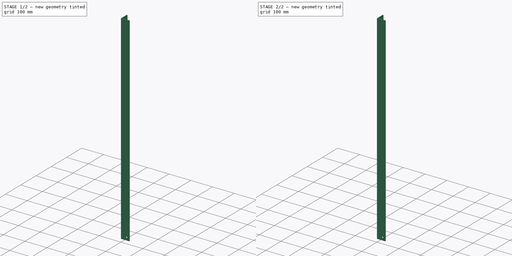
[diagram: build sequence overview — one tinted view per stage of 2, left to right]
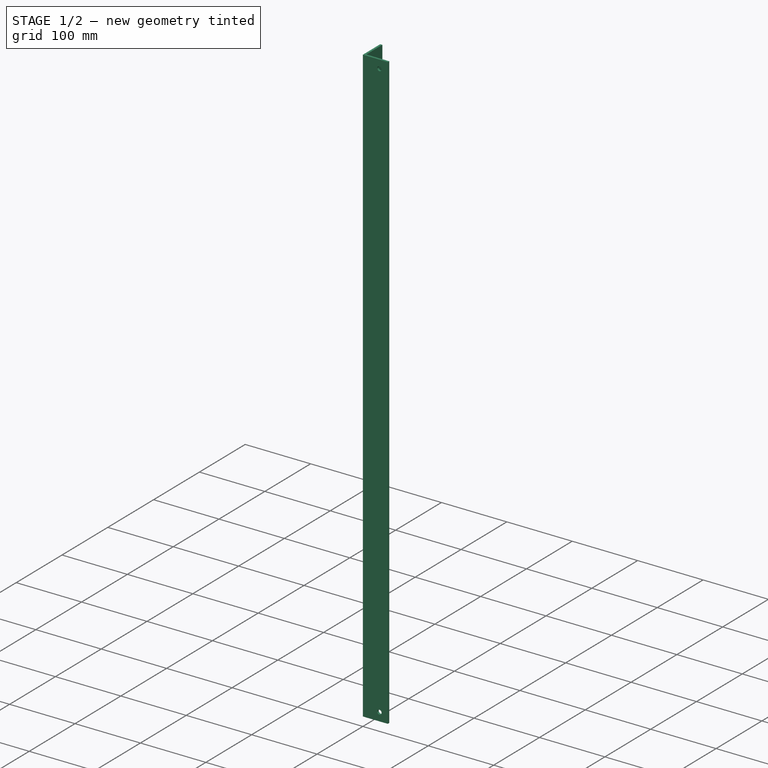
[diagram: stage 1 of 2 — iso view after this stage's code; geometry added in this stage tinted green]
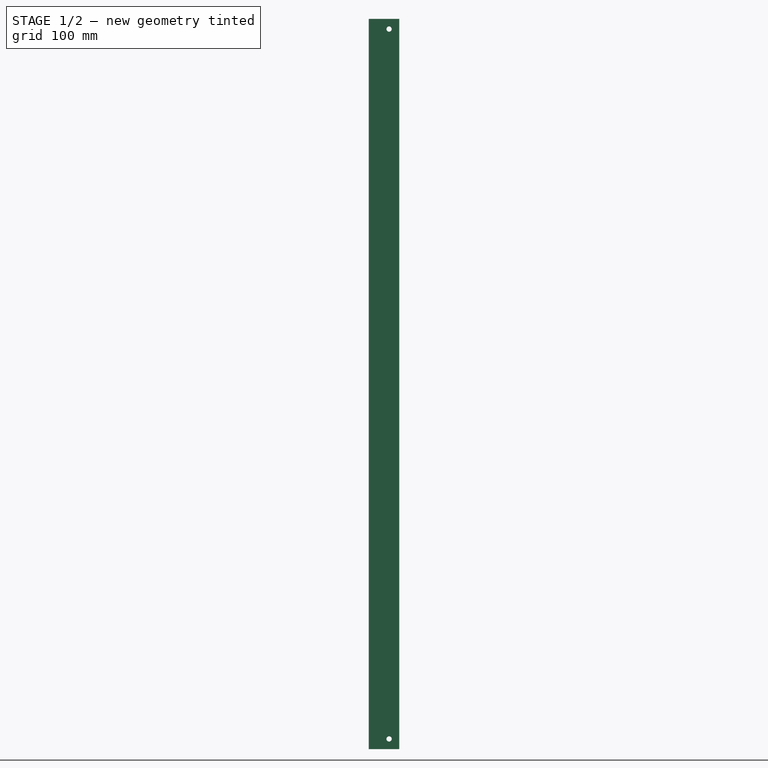
[diagram: stage 1 of 2 — front view after this stage's code; geometry added in this stage tinted green]
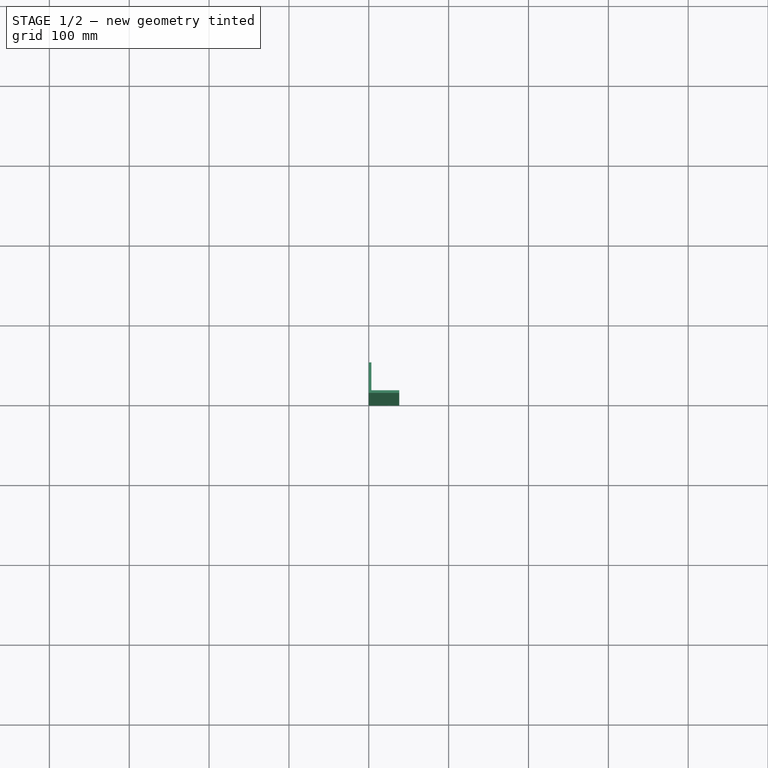
[diagram: stage 1 of 2 — top view after this stage's code; geometry added in this stage tinted green]
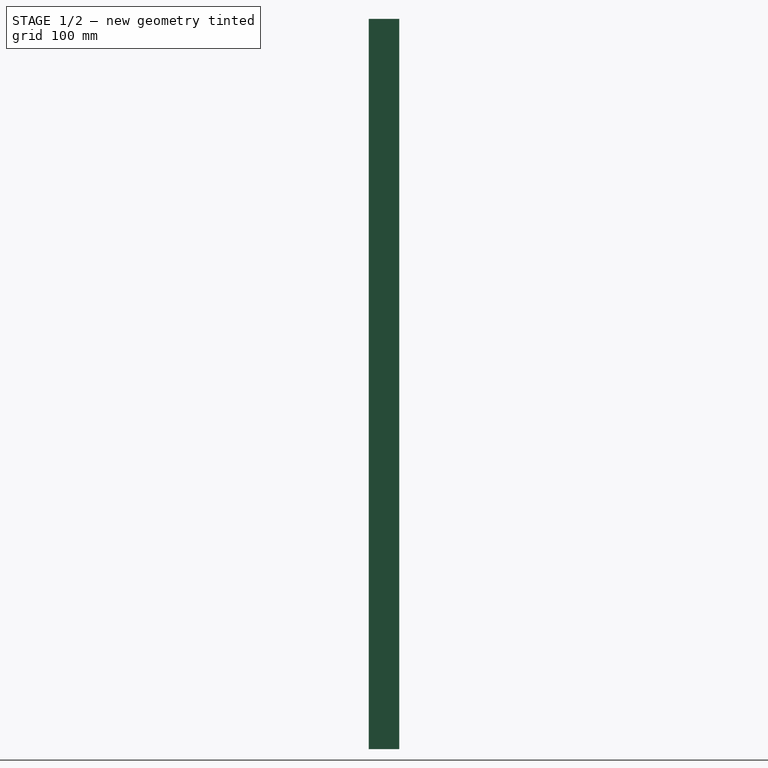
[diagram: stage 1 of 2 — right view after this stage's code; geometry added in this stage tinted green]
FCSTD DOCUMENT  (FreeCAD 0.21R33694 (Git))
Label: Angle_36in_Holes
License: All rights reserved
LicenseURL: http://en.wikipedia.org/wiki/All_rights_reserved
objects: Sketcher::SketchObject×3, PartDesign::Pocket×2, PartDesign::Pad×1, PartDesign::Body×1, App::Part×1
note: 10 computed .brp shape members not serialized (recipe doc carries the construction recipe); baked Part::Feature solids carry a one-line shape summary decoded from their .brp

FEATURE [Sketcher::SketchObject] Sketch
  FullyConstrained = true
  MapMode = 5
  sketch-geometry (6):
    g0: LineSegment StartX=0 StartY=0 StartZ=0 EndX=38.1 EndY=0 EndZ=0
    g1: LineSegment StartX=38.1 StartY=0 StartZ=0 EndX=38.1 EndY=3.175 EndZ=0
    g2: LineSegment StartX=38.1 StartY=3.175 StartZ=0 EndX=3.175 EndY=3.175 EndZ=0
    g3: LineSegment StartX=3.175 StartY=3.175 StartZ=0 EndX=3.175 EndY=38.1 EndZ=0
    g4: LineSegment StartX=3.175 StartY=38.1 StartZ=0 EndX=0 EndY=38.1 EndZ=0
    g5: LineSegment StartX=0 StartY=38.1 StartZ=0 EndX=0 EndY=0 EndZ=0
  constraints (17):
    c: Coincident(g-1,g0)
    c: PointOnObject(g0,g-1)
    c: Coincident(g0,g1)
    c: Vertical(g1)
    c: Coincident(g1,g2)
    c: Horizontal(g2)
    c: Coincident(g2,g3)
    c: Vertical(g3)
    c: Coincident(g3,g4)
    c: PointOnObject(g4,g-2)
    c: Coincident(g4,g5)
    c: Coincident(g5,g0)
    c: Horizontal(g4)
    c: Equal(g1,g4)
    c: Equal(g0,g5)
    c: Distance(g0) = 38.1
    c: DistanceY(g1,g1) = 3.175
FEATURE [PartDesign::Pad] Pad
  Direction = (0,0,1)
  Length = 914.4
  Length2 = 10
  Profile = -> Sketch
  ReferenceAxis = -> Sketch [N_Axis]
  Type = 0
FEATURE [Sketcher::SketchObject] Sketch001
  ExternalGeometry = -> [Pad]
  FullyConstrained = true
  MapMode = 5
  Placement = pos=(0,0,0) rot=(1,0,0;1.5708rad)
  Support = -> [Pad]
  sketch-geometry (6):
    g0: LineSegment StartX=38.1 StartY=914.4 StartZ=0 EndX=25.4 EndY=914.4 EndZ=0
    g1: LineSegment StartX=25.4 StartY=914.4 StartZ=0 EndX=25.4 EndY=901.7 EndZ=0
    g2: Circle CenterX=25.4 CenterY=901.7 CenterZ=0 NormalX=0 NormalY=0 NormalZ=1 AngleXU=0 Radius=3.3
    g3: LineSegment StartX=38.1 StartY=-1e-16 StartZ=0 EndX=25.4 EndY=-1e-16 EndZ=0
    g4: LineSegment StartX=25.4 StartY=-1e-16 StartZ=0 EndX=25.4 EndY=12.7 EndZ=0
    g5: Circle CenterX=25.4 CenterY=12.7 CenterZ=0 NormalX=0 NormalY=0 NormalZ=1 AngleXU=0 Radius=3.3
  constraints (16):
    c: Coincident(g0,g1)
    c: Horizontal(g0)
    c: Vertical(g1)
    c: Coincident(g0,g-3)
    c: Equal(g0,g1)
    c: DistanceX(g0,g0) = 12.7
    c: Coincident(g2,g1)
    c: Diameter(g2) = 6.6
    c: Coincident(g3,g4)
    c: Horizontal(g3)
    c: Vertical(g4)
    c: Coincident(g3,g-4)
    c: Equal(g3,g4)
    c: Equal(g3,g0)
    c: Coincident(g5,g4)
    c: Equal(g5,g2)
FEATURE [PartDesign::Pocket] Pocket
  BaseFeature = -> Pad
  Direction = (0,1,-2e-16)
  Length = 0
  Length2 = 5
  Profile = -> Sketch001
  ReferenceAxis = -> Sketch001 [N_Axis]
  Type = 3
  UpToFace = -> Pad [Face3]
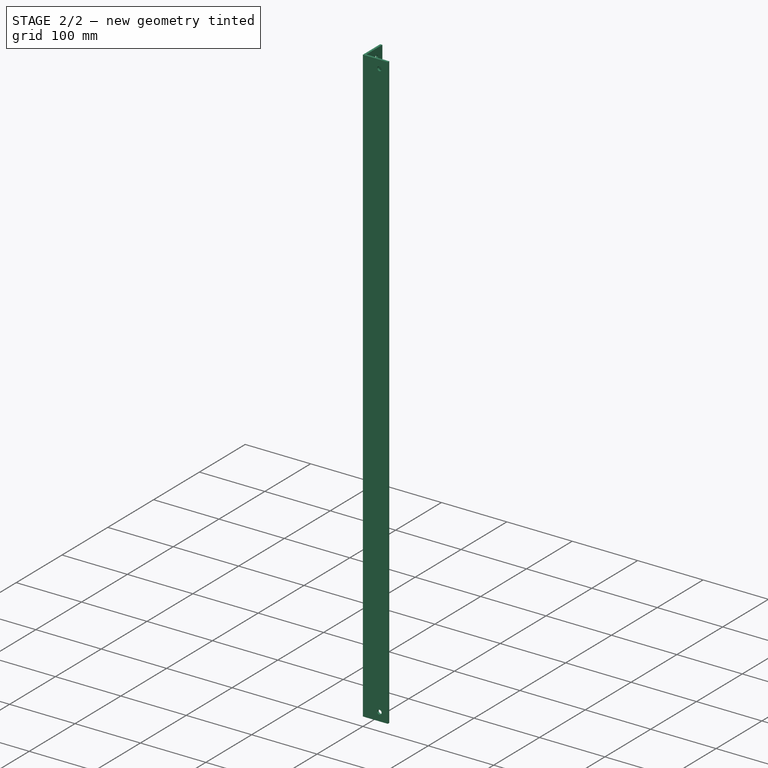
[diagram: stage 2 of 2 — iso view after this stage's code; geometry added in this stage tinted green]
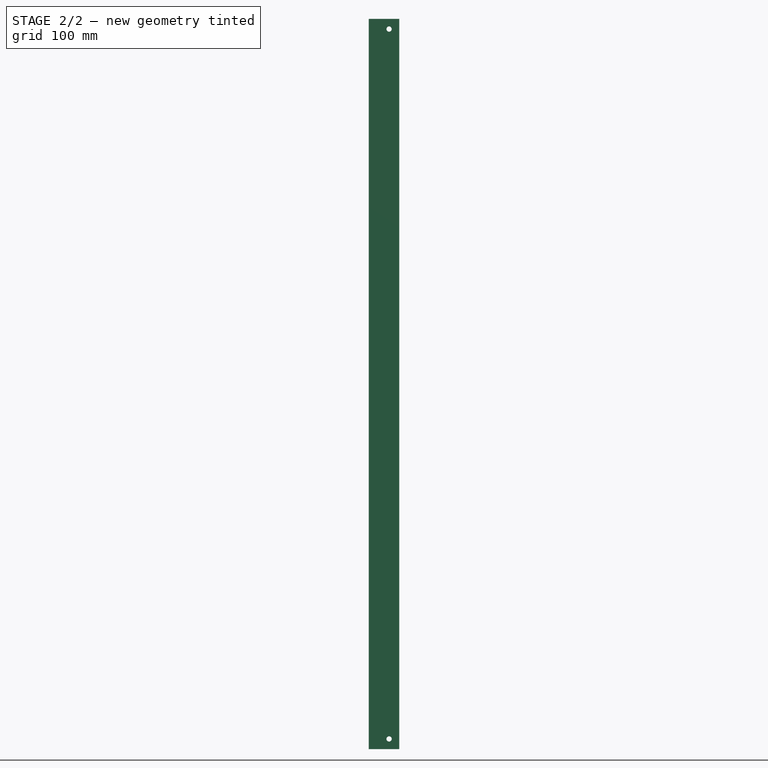
[diagram: stage 2 of 2 — front view after this stage's code; geometry added in this stage tinted green]
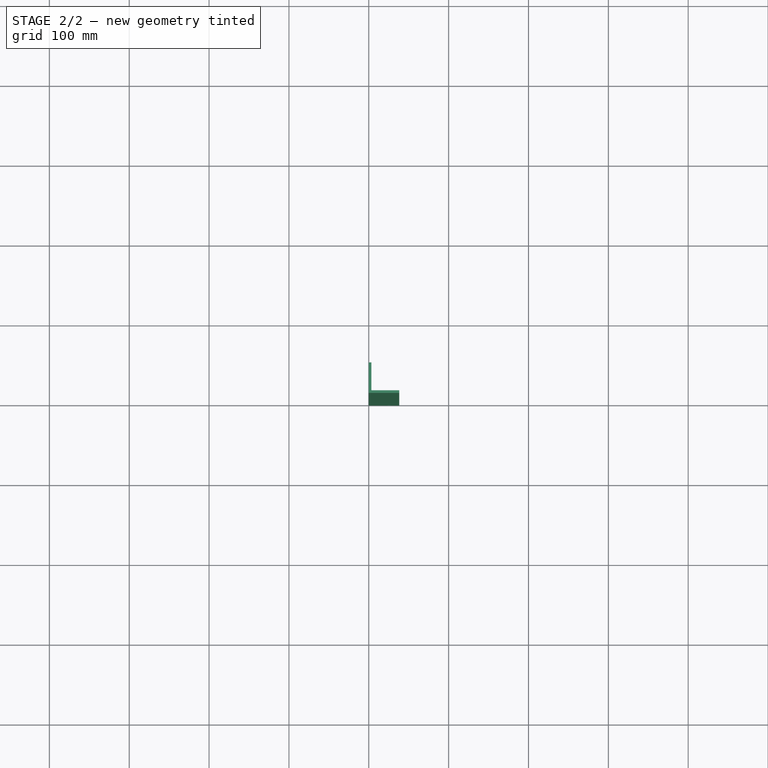
[diagram: stage 2 of 2 — top view after this stage's code; geometry added in this stage tinted green]
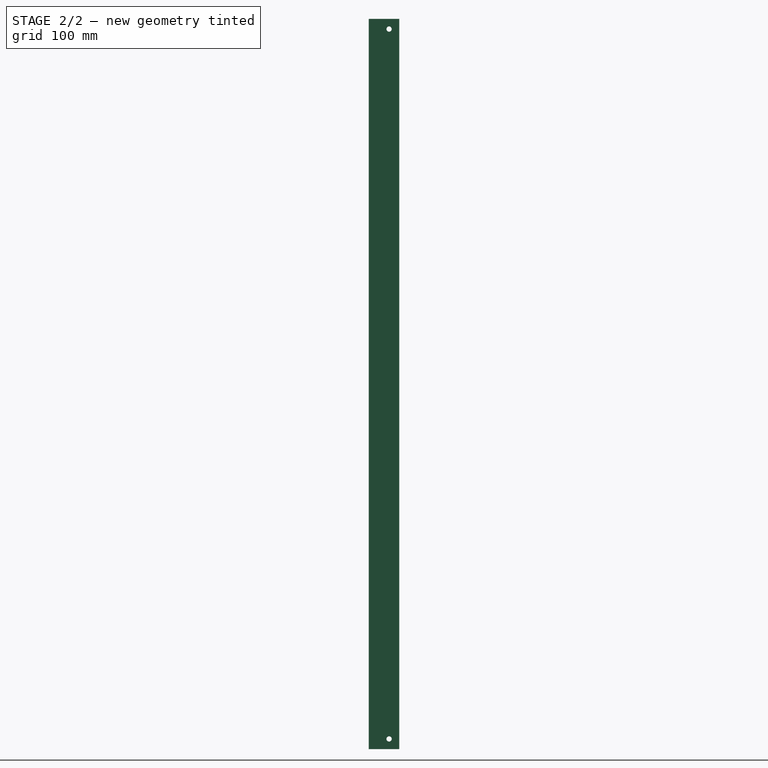
[diagram: stage 2 of 2 — right view after this stage's code; geometry added in this stage tinted green]
FEATURE [Sketcher::SketchObject] Sketch002
  ExternalGeometry = -> [Pocket]
  FullyConstrained = true
  MapMode = 5
  Placement = pos=(0,0,0) rot=(0.57735,-0.57735,-0.57735;2.0944rad)
  Support = -> [Pocket]
  sketch-geometry (6):
    g0: LineSegment StartX=-38.1 StartY=914.4 StartZ=0 EndX=-25.4 EndY=914.4 EndZ=0
    g1: LineSegment StartX=-25.4 StartY=914.4 StartZ=0 EndX=-25.4 EndY=901.7 EndZ=0
    g2: LineSegment StartX=-38.1 StartY=0 StartZ=0 EndX=-25.4 EndY=0 EndZ=0
    g3: LineSegment StartX=-25.4 StartY=0 StartZ=0 EndX=-25.4 EndY=12.7 EndZ=0
    g4: Circle CenterX=-25.4 CenterY=901.7 CenterZ=0 NormalX=0 NormalY=0 NormalZ=1 AngleXU=0 Radius=3.3
    g5: Circle CenterX=-25.4 CenterY=12.7 CenterZ=0 NormalX=0 NormalY=0 NormalZ=1 AngleXU=0 Radius=3.3
  constraints (16):
    c: Coincident(g0,g1)
    c: Horizontal(g0)
    c: Vertical(g1)
    c: Coincident(g0,g-4)
    c: Coincident(g2,g3)
    c: Horizontal(g2)
    c: Vertical(g3)
    c: Coincident(g2,g-3)
    c: Equal(g0,g1)
    c: Equal(g0,g2)
    c: Equal(g2,g3)
    c: DistanceX(g0,g0) = 12.7
    c: Coincident(g4,g1)
    c: Coincident(g5,g3)
    c: Equal(g4,g5)
    c: Diameter(g4) = 6.6
FEATURE [PartDesign::Pocket] Pocket001
  BaseFeature = -> Pocket
  Direction = (1,0,0)
  Length = 0
  Length2 = 5
  Profile = -> Sketch002
  ReferenceAxis = -> Sketch002 [N_Axis]
  Type = 3
  UpToFace = -> Pocket [Face10]
FEATURE [PartDesign::Body] Body
  Group = -> [Sketch,Pad,Sketch001,Pocket,Sketch002,Pocket001]
  Origin = -> Origin001
  Tip = -> Pocket001
FEATURE [App::Part] Part
  Group = -> [Body]
  Origin = -> Origin
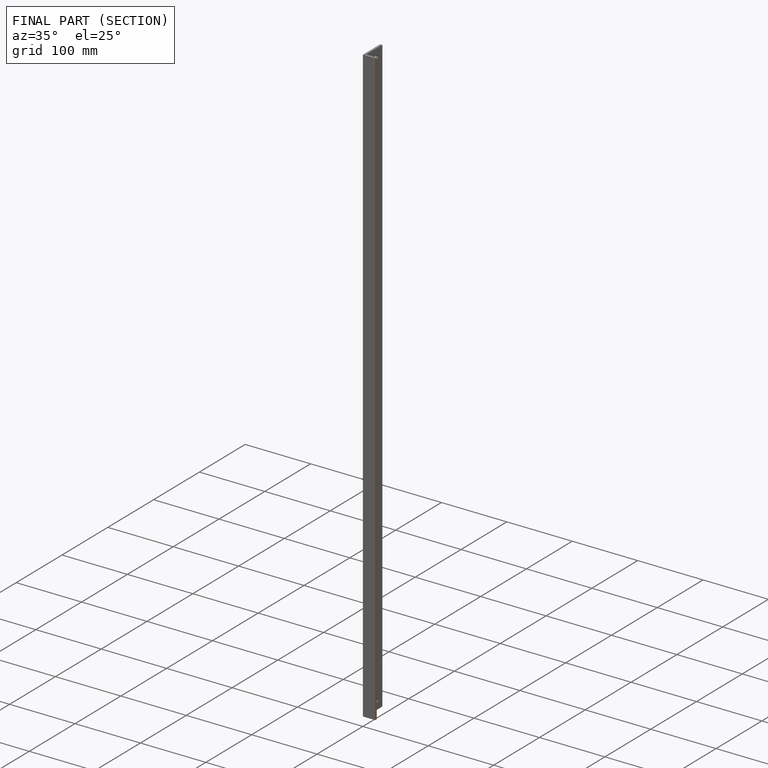
[diagram: finished part — half-section view (interior)]
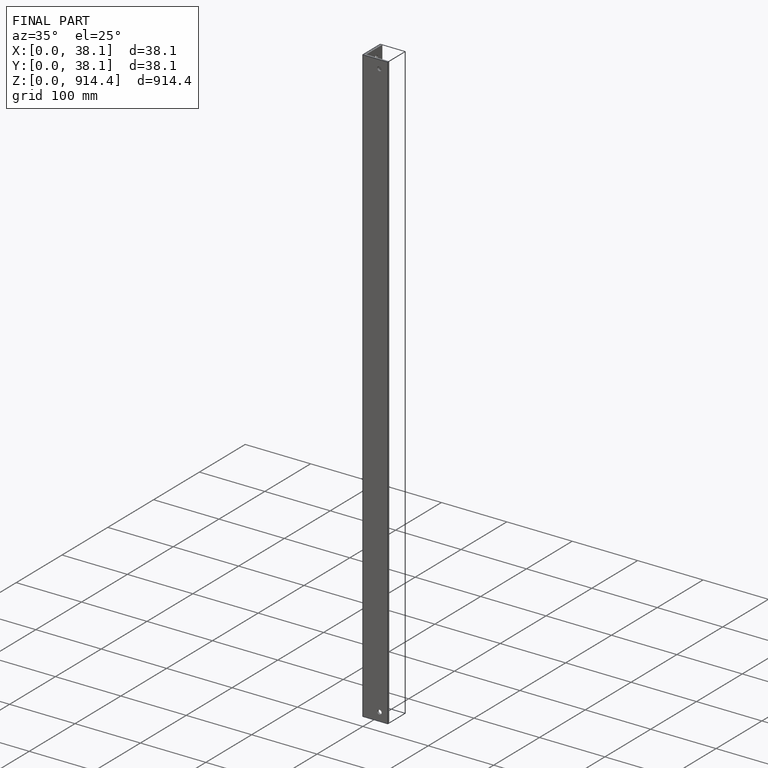
[diagram: finished part — iso view with bounding-box wireframe]
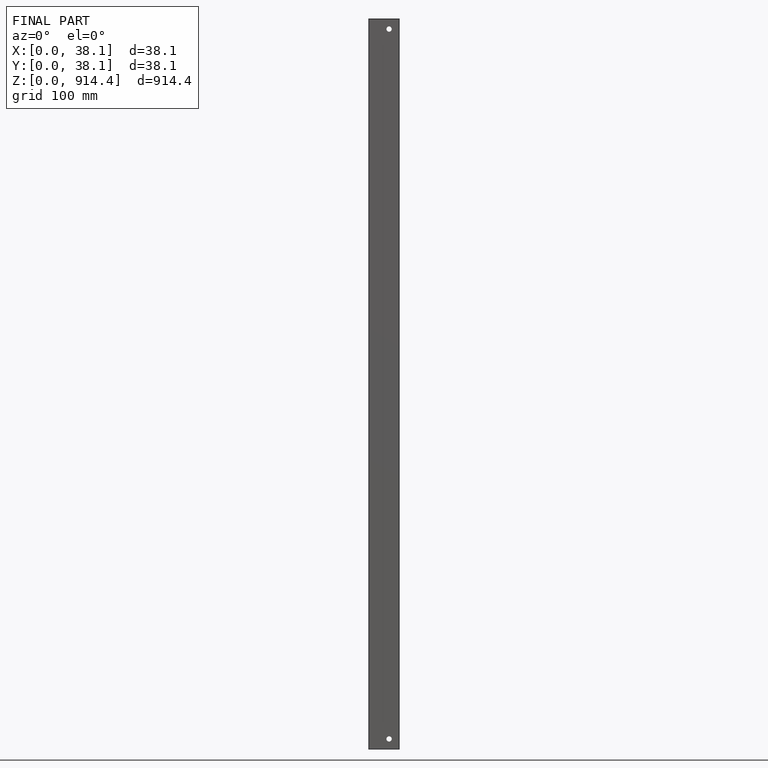
[diagram: finished part — front view with bounding-box wireframe]
